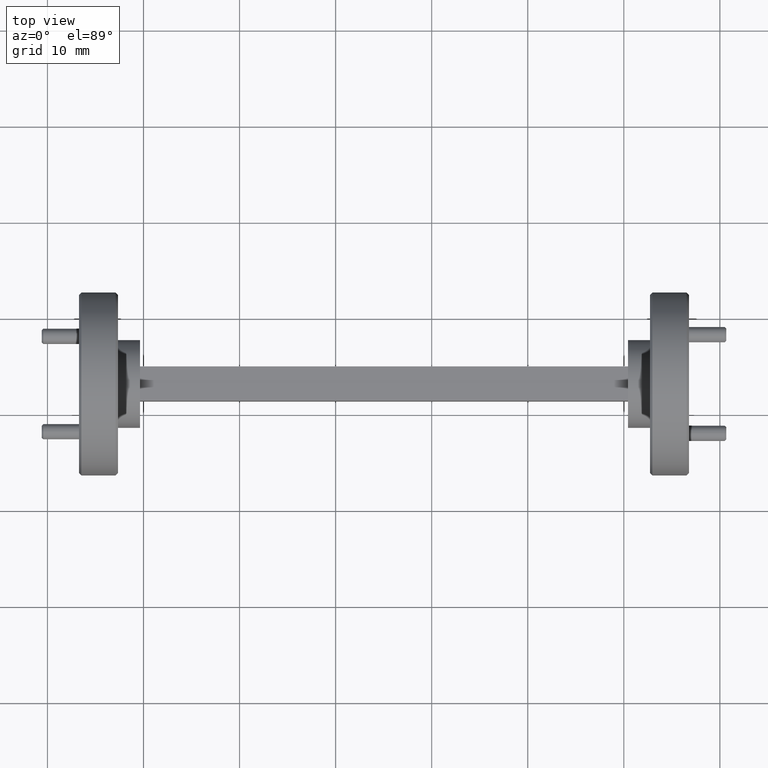
[diagram: clean part render]
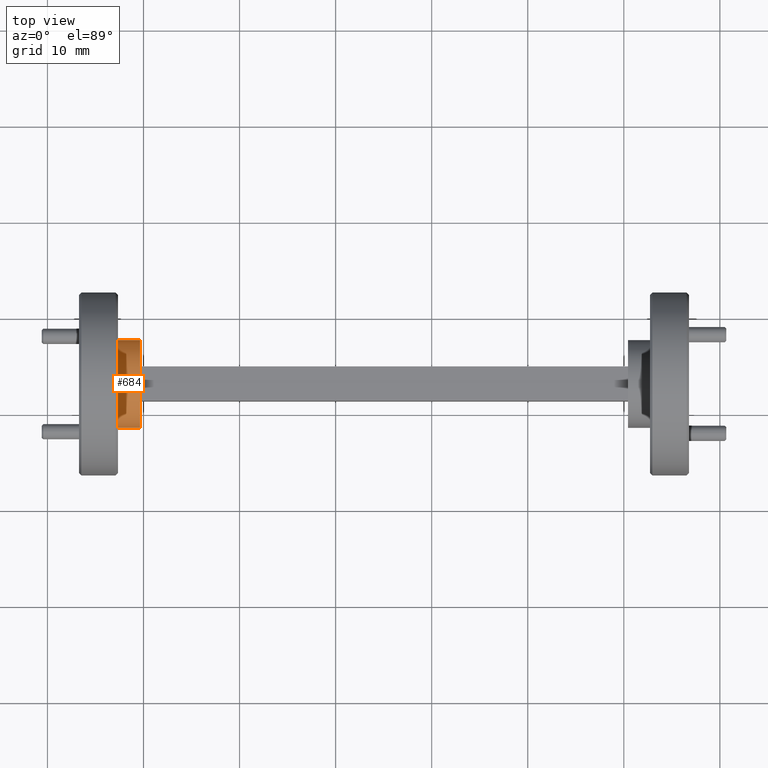
[diagram: same view with one face highlighted and labeled with its STEP entity id]
A machine part, top view. The second image highlights one B-rep face of the part: STEP entity #684.
In plain terms, the highlighted cylindrical surface (partial cylindrical patch) has radius 4.572 mm, axis along (1, 0, -0).
Its self-contained STEP definition (entity closure, byte-faithful):
#95 = EDGE_LOOP ( 'NONE', ( #2513, #2132, #2603, #5310 ) ) ;
#181 = CARTESIAN_POINT ( 'NONE',  ( -0.4080541153282570277, 1.910015889200941341, 2.884611598569149393 ) ) ;
#224 = DIRECTION ( 'NONE',  ( 1.000000000000000000, -0.000000000000000000, -0.000000000000000000 ) ) ;
#343 = VERTEX_POINT ( 'NONE', #3619 ) ;
#684 = ADVANCED_FACE ( 'NONE', ( #2503 ), #5382, .T. ) ;
#689 = CARTESIAN_POINT ( 'NONE',  ( -0.6580541153284433786, 1.910015889200941341, 2.884611598569149393 ) ) ;
#1103 = VECTOR ( 'NONE', #5297, 39.37007874015748143 ) ;
#1164 = LINE ( 'NONE', #689, #1103 ) ;
#1239 = CARTESIAN_POINT ( 'NONE',  ( -0.6580541153284433786, 2.090015889200941057, 2.884611598569149393 ) ) ;
#1765 = DIRECTION ( 'NONE',  ( 1.000000000000000000, 1.224646799147353454E-16, -0.000000000000000000 ) ) ;
#1776 = EDGE_CURVE ( 'NONE', #343, #2117, #7376, .T. ) ;
#2117 = VERTEX_POINT ( 'NONE', #181 ) ;
#2132 = ORIENTED_EDGE ( 'NONE', *, *, #4324, .T. ) ;
#2265 = CARTESIAN_POINT ( 'NONE',  ( -0.4980541153282569966, 1.910015889200940897, 2.884611598569149393 ) ) ;
#2503 = FACE_OUTER_BOUND ( 'NONE', #95, .T. ) ;
#2513 = ORIENTED_EDGE ( 'NONE', *, *, #6225, .T. ) ;
#2603 = ORIENTED_EDGE ( 'NONE', *, *, #1776, .F. ) ;
#3046 = EDGE_CURVE ( 'NONE', #3774, #343, #5156, .T. ) ;
#3357 = VECTOR ( 'NONE', #1765, 39.37007874015748143 ) ;
#3473 = VERTEX_POINT ( 'NONE', #2265 ) ;
#3619 = CARTESIAN_POINT ( 'NONE',  ( -0.4080541153282570277, 2.270015889200940773, 2.884611598569149393 ) ) ;
#3631 = CIRCLE ( 'NONE', #3878, 0.1799999999999999933 ) ;
#3762 = CARTESIAN_POINT ( 'NONE',  ( -0.4980541153282569966, 2.090015889200941057, 2.884611598569149393 ) ) ;
#3774 = VERTEX_POINT ( 'NONE', #6303 ) ;
#3878 = AXIS2_PLACEMENT_3D ( 'NONE', #3762, #4811, #6530 ) ;
#4324 = EDGE_CURVE ( 'NONE', #3473, #2117, #1164, .T. ) ;
#4584 = DIRECTION ( 'NONE',  ( 1.000000000000000000, 1.224646799147353454E-16, -0.000000000000000000 ) ) ;
#4811 = DIRECTION ( 'NONE',  ( 1.000000000000000000, 1.224646799147353454E-16, -0.000000000000000000 ) ) ;
#4935 = DIRECTION ( 'NONE',  ( 0.000000000000000000, 0.000000000000000000, 1.000000000000000000 ) ) ;
#5150 = AXIS2_PLACEMENT_3D ( 'NONE', #1239, #4584, #6857 ) ;
#5156 = LINE ( 'NONE', #6872, #3357 ) ;
#5297 = DIRECTION ( 'NONE',  ( 1.000000000000000000, 1.224646799147353454E-16, -0.000000000000000000 ) ) ;
#5310 = ORIENTED_EDGE ( 'NONE', *, *, #3046, .F. ) ;
#5382 = CYLINDRICAL_SURFACE ( 'NONE', #5150, 0.1799999999999997158 ) ;
#5411 = CARTESIAN_POINT ( 'NONE',  ( -0.4080541153282570277, 2.090015889200941057, 2.884611598569149393 ) ) ;
#5450 = AXIS2_PLACEMENT_3D ( 'NONE', #5411, #224, #4935 ) ;
#6225 = EDGE_CURVE ( 'NONE', #3774, #3473, #3631, .T. ) ;
#6303 = CARTESIAN_POINT ( 'NONE',  ( -0.4980541153282569966, 2.270015889200940773, 2.884611598569149393 ) ) ;
#6530 = DIRECTION ( 'NONE',  ( 0.000000000000000000, 1.000000000000000000, 0.000000000000000000 ) ) ;
#6857 = DIRECTION ( 'NONE',  ( 0.000000000000000000, 1.000000000000000000, 0.000000000000000000 ) ) ;
#6872 = CARTESIAN_POINT ( 'NONE',  ( -0.6580541153284433786, 2.270015889200940773, 2.884611598569149393 ) ) ;
#7376 = CIRCLE ( 'NONE', #5450, 0.1799999999999997158 ) ;